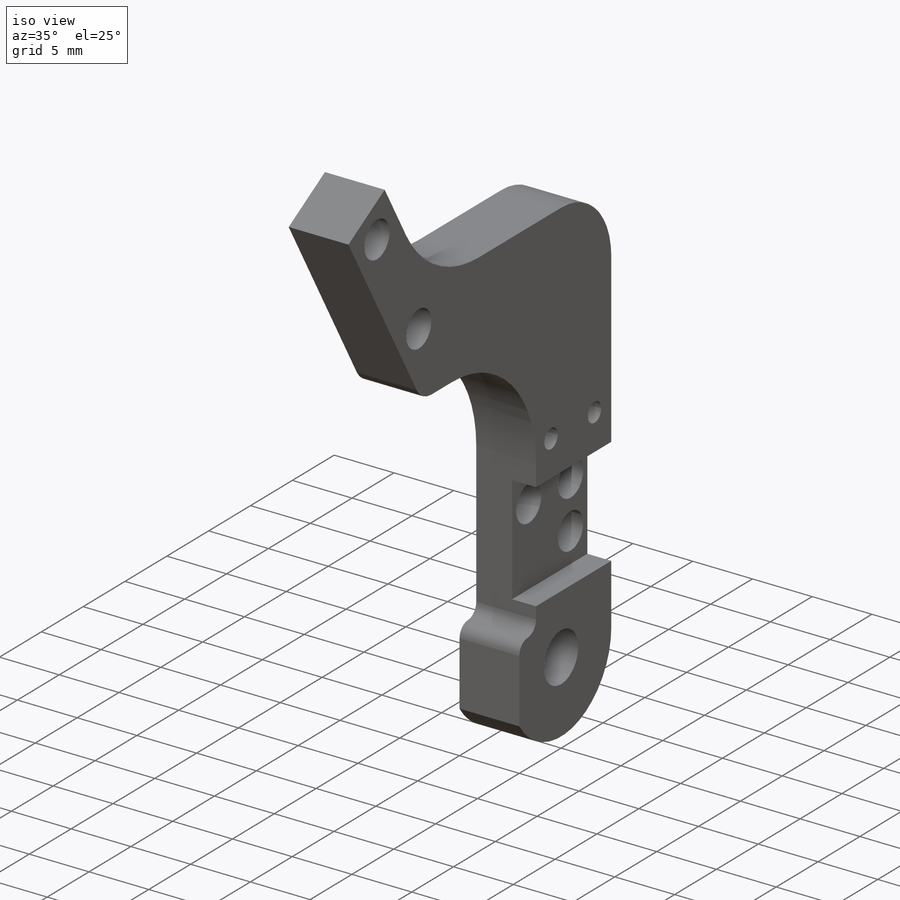
[diagram: iso view]
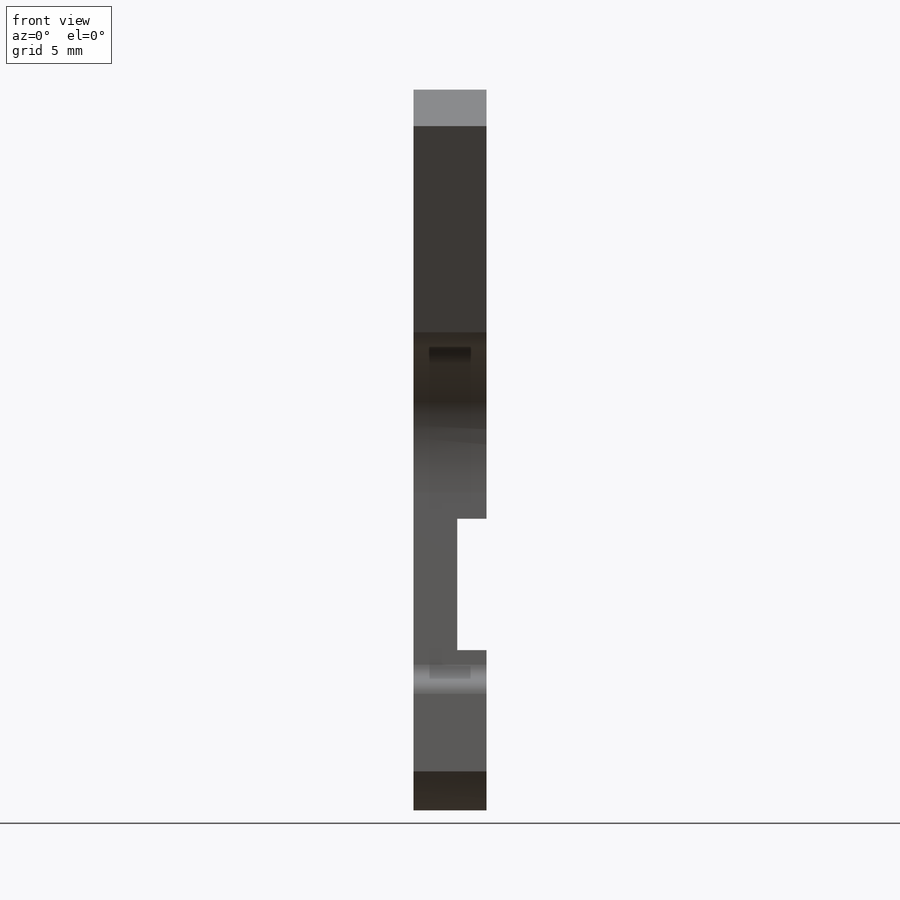
[diagram: front view]
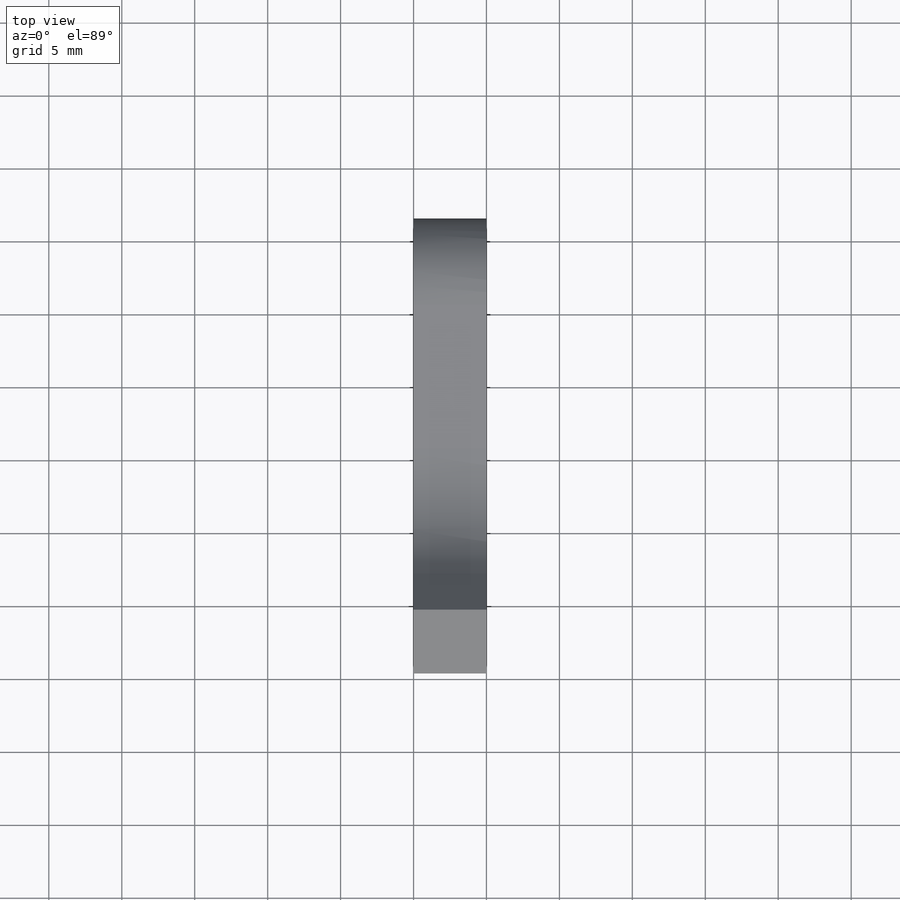
[diagram: top view]
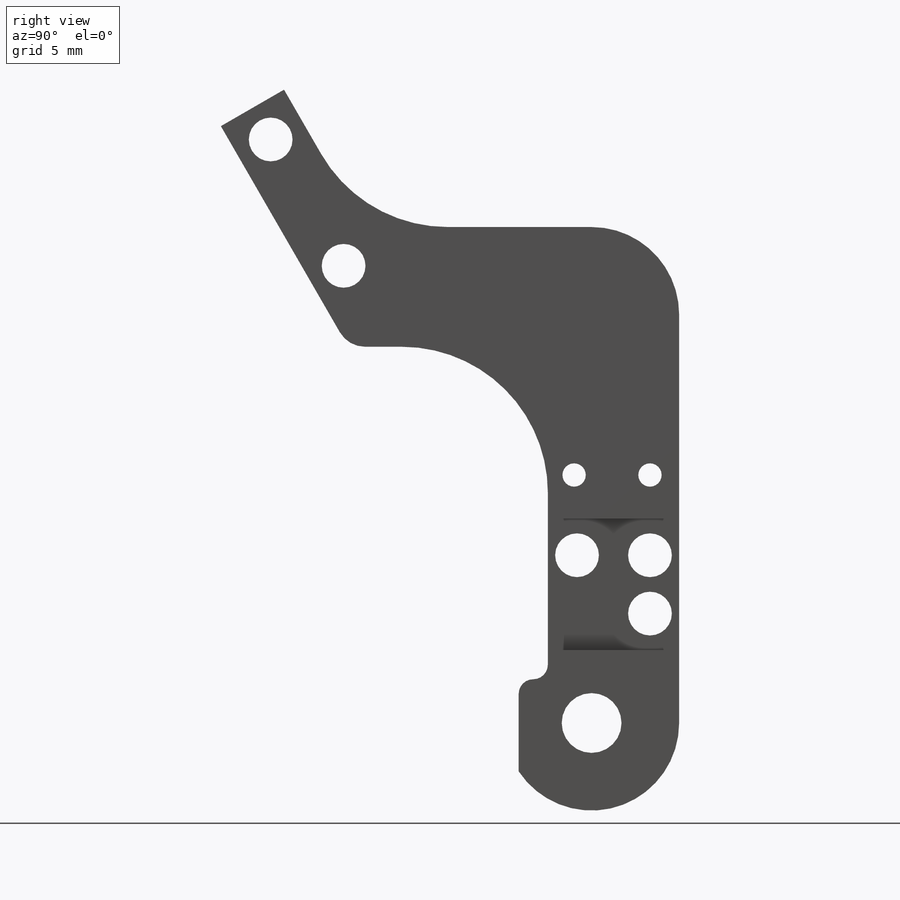
[diagram: right view]
SOLIDWORKS PART (.sldprt)
format: sldprt  version: not decoded by parser v0  size: 283,136 bytes
history: native  units: mm
features: sketch x5, cut_extrude x2, material x1, extrude x1, fillet x1, hole x1 (+11 scaffold rows collapsed)
feature tree (22):
  scaffold x11  (default folders/planes/origin — collapsed)
  material  "Material <not specified>"
  sketch  "Sketch1"  dims[c1.D1=3.0mm c1.D2=4.1mm c1.D3=6.0mm c1.D10=6.0mm c1.D11=10.0mm c1.D18=2.0mm c1.D19=10.0mm c1.D20=10.0mm c1.D4=7.5mm c1.D5=2.0mm c1.D6=5.0mm c1.D7=2.0mm c1.D8=4.0mm c1.D9=28.0mm c1.D12=18.59mm c1.D13=5.09mm c1.D14=5.0mm c1.D15=2.5mm c1.D16=2.5mm c1.D17=11.5mm c1.D21=16.31mm c1.D22=31.42mm c1.D23=2.0mm c1.D24=43.53mm c1.D25=~7.539744mm c2.D25=120.0deg c2.D26=3.0mm c2.D11=23.5mm c2.D12=1.7mm c2.D13=10.0mm c3.D11=28.0mm c3.D12=6.0mm]
  extrude  "Boss-Extrude1"  Depth=5mm
  fillet  "Fillet1"  Radius=1mm
  hole  "Tap Drill for M2x0.4 Tap1"  Diameter=1.6mm Depth=5mm
  sketch  "Sketch3"  dims[D1=17.0mm D2=5.2mm D3=2.0mm]
  sketch  "Sketch2"  dims[hole-wizard template sketch: 60 standard entries collapsed; hole parameters kept: c18.Thru Hole Depth=5.0mm]
  sketch  "Sketch4"  dims[D1=5.0mm D2=9.0mm]
  cut_extrude  "Cut-Extrude1"  Depth=2mm
  sketch  "Sketch5"  dims[D1=10.0mm]
  cut_extrude  "Cut-Extrude2"  Depth=3.5mm
decode coverage: 10 of 10 modeling features carry decoded parameters
note: ~ marks probable driven/reference dimensions
note: suppression state not decoded; provenance and decode notes live in map.json
